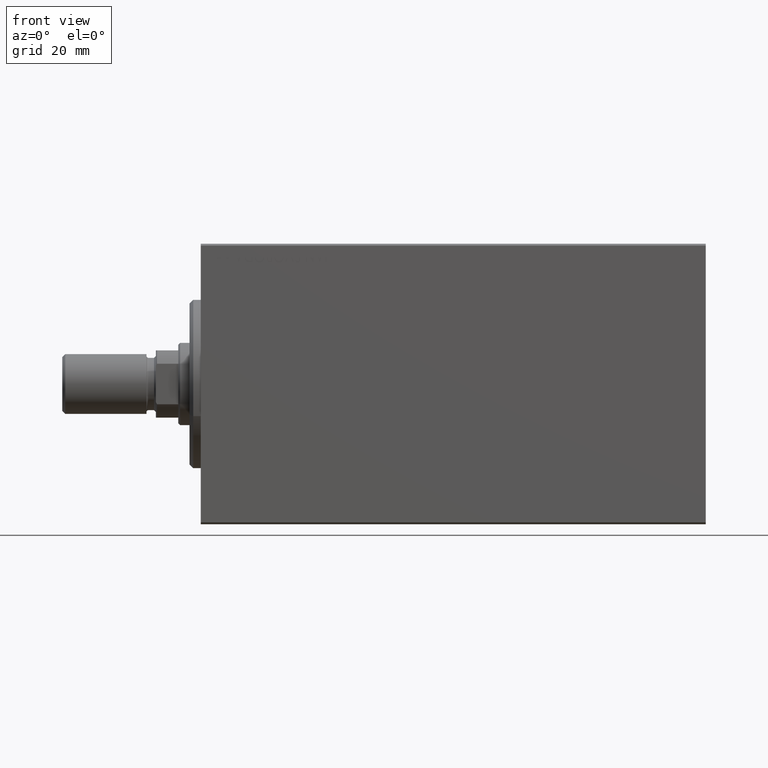
[diagram: clean part render]
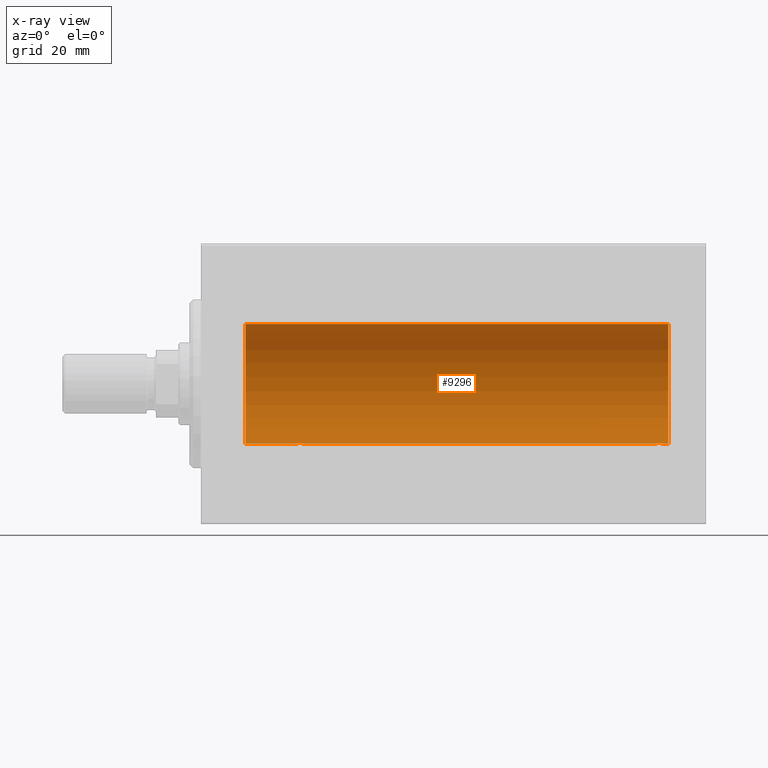
[diagram: x-ray — body ghosted, one internal face saturated and labeled with its STEP entity id]
A machine part, front view, then the same camera in x-ray: the body is ghosted and one INTERNAL B-rep face — a face not visible from any outside direction — is saturated and labeled: STEP entity #9296.
In plain terms, the highlighted cylindrical surface (partial cylindrical patch) has radius 16 mm, axis along (-1, -0, -0).
Its self-contained STEP definition (entity closure, byte-faithful):
#255 = ORIENTED_EDGE ( 'NONE', *, *, #5797, .T. ) ;
#825 = CARTESIAN_POINT ( 'NONE',  ( 25.27043888260214999, 1.598790766515153061, -15.92099550861380486 ) ) ;
#1274 = CARTESIAN_POINT ( 'NONE',  ( 24.76431901501739219, 1.002241074716281766, -15.96895041604536658 ) ) ;
#1449 = DIRECTION ( 'NONE',  ( -1.000000000000000000, -0.000000000000000000, -0.000000000000000000 ) ) ;
#1487 = CARTESIAN_POINT ( 'NONE',  ( 26.23808537237744787, 1.999903730784160505, -15.87451999516786216 ) ) ;
#1508 = CARTESIAN_POINT ( 'NONE',  ( 124.2348267067495726, 1.003662148334364845, -15.96885838080210362 ) ) ;
#1902 = AXIS2_PLACEMENT_3D ( 'NONE', #23455, #40724, #3452 ) ;
#1946 = CARTESIAN_POINT ( 'NONE',  ( 27.38617757057270197, 1.797743958659261398, -15.89876304682112718 ) ) ;
#2451 = CARTESIAN_POINT ( 'NONE',  ( 28.49999999999999645, 1.959434851239213200E-15, -16.00000000000000000 ) ) ;
#3118 = CARTESIAN_POINT ( 'NONE',  ( 120.6024112994440713, 0.6452446332037987675, -15.98744362947834929 ) ) ;
#3345 = CARTESIAN_POINT ( 'NONE',  ( 122.7625158300790105, 1.987008272775781403, -15.87616016863256618 ) ) ;
#3452 = DIRECTION ( 'NONE',  ( 0.000000000000000000, 0.000000000000000000, 1.000000000000000000 ) ) ;
#4827 = CYLINDRICAL_SURFACE ( 'NONE', #42584, 16.00000000000000000 ) ;
#5003 = EDGE_CURVE ( 'NONE', #34205, #13244, #9539, .T. ) ;
#5312 = CARTESIAN_POINT ( 'NONE',  ( 28.39783726498896144, 0.6445079780200569930, -15.98747331501412816 ) ) ;
#5797 = EDGE_CURVE ( 'NONE', #34205, #21686, #30909, .T. ) ;
#5852 = CARTESIAN_POINT ( 'NONE',  ( 125.0000000000000000, 0.000000000000000000, 16.00000000000000000 ) ) ;
#6143 = ORIENTED_EDGE ( 'NONE', *, *, #11698, .T. ) ;
#6726 = CARTESIAN_POINT ( 'NONE',  ( 123.0191309771011134, 1.935876924222067919, -15.88247600692093187 ) ) ;
#6764 = DIRECTION ( 'NONE',  ( -1.000000000000000000, 0.000000000000000000, 0.000000000000000000 ) ) ;
#7402 = ORIENTED_EDGE ( 'NONE', *, *, #7408, .T. ) ;
#7408 = EDGE_CURVE ( 'NONE', #23560, #13244, #27004, .T. ) ;
#7765 = CARTESIAN_POINT ( 'NONE',  ( 120.5000000000000142, -1.209844185672201777E-14, -16.00000000000000000 ) ) ;
#8428 = DIRECTION ( 'NONE',  ( 0.000000000000000000, 0.000000000000000000, 1.000000000000000000 ) ) ;
#8685 = CARTESIAN_POINT ( 'NONE',  ( 24.99389287531753823, 1.322357532253824131, -15.94553003295876970 ) ) ;
#8910 = CARTESIAN_POINT ( 'NONE',  ( 28.50000000000001066, 0.1305944228192323919, -16.00000000000000711 ) ) ;
#9296 = ADVANCED_FACE ( 'NONE', ( #18083 ), #4827, .F. ) ;
#9539 = LINE ( 'NONE', #26602, #15215 ) ;
#9874 = CARTESIAN_POINT ( 'NONE',  ( 120.5638867331794017, 0.5181437283161933749, -15.99211983514075008 ) ) ;
#10084 = CARTESIAN_POINT ( 'NONE',  ( 122.2380853723774408, 1.999903730784144962, -15.87451999516785861 ) ) ;
#10088 = ORIENTED_EDGE ( 'NONE', *, *, #13609, .F. ) ;
#11123 = CIRCLE ( 'NONE', #43376, 16.00000000000000000 ) ;
#11189 = CARTESIAN_POINT ( 'NONE',  ( 124.4356905292613078, 0.5198215460038736468, -15.99206840425679310 ) ) ;
#11386 = CARTESIAN_POINT ( 'NONE',  ( 24.51299475991586974, 0.2623312429553280034, -15.99836091803359750 ) ) ;
#11698 = EDGE_CURVE ( 'NONE', #20607, #25717, #11123, .T. ) ;
#12834 = CARTESIAN_POINT ( 'NONE',  ( 11.99999999999999645, 0.000000000000000000, 0.000000000000000000 ) ) ;
#12880 = CARTESIAN_POINT ( 'NONE',  ( 11.99999999999999645, 0.000000000000000000, 16.00000000000000000 ) ) ;
#12945 = CARTESIAN_POINT ( 'NONE',  ( 125.0000000000000000, 1.959434878635765131E-15, -16.00000000000000000 ) ) ;
#13043 = DIRECTION ( 'NONE',  ( 0.000000000000000000, 0.000000000000000000, 1.000000000000000000 ) ) ;
#13237 = CARTESIAN_POINT ( 'NONE',  ( 120.5000000000000142, -1.209844185672201777E-14, -16.00000000000000000 ) ) ;
#13244 = VERTEX_POINT ( 'NONE', #2451 ) ;
#13336 = CARTESIAN_POINT ( 'NONE',  ( 28.49999999999999645, 1.959434851239213200E-15, -16.00000000000000000 ) ) ;
#13454 = CARTESIAN_POINT ( 'NONE',  ( 121.2704388826021784, 1.598790766515134409, -15.92099550861380841 ) ) ;
#13521 = EDGE_CURVE ( 'NONE', #22781, #21686, #13607, .T. ) ;
#13607 = LINE ( 'NONE', #12945, #33987 ) ;
#13609 = EDGE_CURVE ( 'NONE', #23560, #25717, #40331, .T. ) ;
#13700 = CARTESIAN_POINT ( 'NONE',  ( 124.5000000000000142, 1.959434851248285101E-15, -16.00000000000000000 ) ) ;
#13757 = CARTESIAN_POINT ( 'NONE',  ( 26.76251583007899271, 1.987008272775795614, -15.87616016863256263 ) ) ;
#14976 = CARTESIAN_POINT ( 'NONE',  ( 24.90948495147900843, 1.219564485341768867, -15.95382484008323054 ) ) ;
#15215 = VECTOR ( 'NONE', #26824, 1000.000000000000000 ) ;
#15421 = CARTESIAN_POINT ( 'NONE',  ( 24.50000000000000000, -2.103177090749212087E-15, -16.00000000000000000 ) ) ;
#15649 = CARTESIAN_POINT ( 'NONE',  ( 27.50311247035039486, 1.735145127817748989, -15.90580292899658765 ) ) ;
#16445 = ORIENTED_EDGE ( 'NONE', *, *, #5003, .F. ) ;
#16577 = ORIENTED_EDGE ( 'NONE', *, *, #32716, .T. ) ;
#16833 = CARTESIAN_POINT ( 'NONE',  ( 120.9094849514790297, 1.219564485341755100, -15.95382484008322344 ) ) ;
#17708 = CARTESIAN_POINT ( 'NONE',  ( 123.7196765744227349, 1.590393755196005232, -15.92092783521423627 ) ) ;
#18083 = FACE_OUTER_BOUND ( 'NONE', #31032, .T. ) ;
#18137 = CARTESIAN_POINT ( 'NONE',  ( 124.0073716031243123, 1.321075116345880041, -15.94564302722883653 ) ) ;
#18569 = CARTESIAN_POINT ( 'NONE',  ( 25.97468243540595623, 1.947280337074166257, -15.88137861827786779 ) ) ;
#20198 = CARTESIAN_POINT ( 'NONE',  ( 120.7643190150173922, 1.002241074716269775, -15.96895041604535770 ) ) ;
#20292 = CARTESIAN_POINT ( 'NONE',  ( 28.09001528100123579, 1.220169175415121154, -15.95377581882983975 ) ) ;
#20423 = CARTESIAN_POINT ( 'NONE',  ( 123.1438696803301411, 1.898058445420877982, -15.88709929148890687 ) ) ;
#20607 = VERTEX_POINT ( 'NONE', #12880 ) ;
#20988 = ORIENTED_EDGE ( 'NONE', *, *, #13521, .F. ) ;
#21080 = CARTESIAN_POINT ( 'NONE',  ( 124.5000000000000142, 0.1305944228192319756, -16.00000000000000000 ) ) ;
#21519 = CARTESIAN_POINT ( 'NONE',  ( 124.5000000000000142, 1.959434851248285101E-15, -16.00000000000000000 ) ) ;
#21686 = VERTEX_POINT ( 'NONE', #13700 ) ;
#21942 = CARTESIAN_POINT ( 'NONE',  ( 25.49340818440418488, 1.747750603376301726, -15.90457341008072056 ) ) ;
#22781 = VERTEX_POINT ( 'NONE', #32553 ) ;
#23455 = CARTESIAN_POINT ( 'NONE',  ( 125.0000000000000000, 0.000000000000000000, 0.000000000000000000 ) ) ;
#23560 = VERTEX_POINT ( 'NONE', #24577 ) ;
#24577 = CARTESIAN_POINT ( 'NONE',  ( 24.50000000000000000, -2.103177090749212087E-15, -16.00000000000000000 ) ) ;
#24667 = CARTESIAN_POINT ( 'NONE',  ( 124.2974992860504244, 0.8866640484200082328, -15.97587307151818159 ) ) ;
#25564 = CIRCLE ( 'NONE', #1902, 16.00000000000000000 ) ;
#25717 = VERTEX_POINT ( 'NONE', #26057 ) ;
#25755 = CARTESIAN_POINT ( 'NONE',  ( 24.70286585251779954, 0.8874076679346754037, -15.97583181162461408 ) ) ;
#25932 = CARTESIAN_POINT ( 'NONE',  ( 125.0000000000000000, 0.000000000000000000, 0.000000000000000000 ) ) ;
#26057 = CARTESIAN_POINT ( 'NONE',  ( 11.99999999999999645, 1.959434878635765131E-15, -16.00000000000000000 ) ) ;
#26602 = CARTESIAN_POINT ( 'NONE',  ( 125.0000000000000000, 1.959434878635765131E-15, -16.00000000000000000 ) ) ;
#26824 = DIRECTION ( 'NONE',  ( -1.000000000000000000, -0.000000000000000000, -0.000000000000000000 ) ) ;
#26938 = CARTESIAN_POINT ( 'NONE',  ( 120.5000000000000000, 0.1322838750249116235, -16.00000000000000355 ) ) ;
#27004 = B_SPLINE_CURVE_WITH_KNOTS ( 'NONE', 3,
 ( #15421, #31606, #11386, #32049, #29136, #25755, #1274, #14976, #8685, #825, #21942, #18569, #1487, #28903, #13757, #29582, #27252, #1946, #15649, #27463, #37147, #39656, #20292, #44101, #30636, #5312, #43034, #33996, #8910, #13336 ),
 .UNSPECIFIED., .F., .F.,
 ( 4, 2, 2, 2, 2, 2, 2, 2, 2, 2, 2, 2, 2, 2, 4 ),
 ( 6.061354251518217081E-19, 0.0003911894522871152153, 0.0007823789045742298885, 0.001173568356861344345, 0.001564757809148459126, 0.002347136713722688690, 0.003129515618296918687, 0.003520705070584038889, 0.003911894522871159526, 0.004303083975158279728, 0.004694273427445399931, 0.005085462879732520133, 0.005476652332019640336, 0.005867841784306760539, 0.006259031236593880741 ),
 .UNSPECIFIED. ) ;
#27159 = CARTESIAN_POINT ( 'NONE',  ( 121.4934081844042169, 1.747750603376289957, -15.90457341008072412 ) ) ;
#27252 = CARTESIAN_POINT ( 'NONE',  ( 27.14386968033013758, 1.898058445420889750, -15.88709929148890510 ) ) ;
#27306 = DIRECTION ( 'NONE',  ( -1.000000000000000000, -0.000000000000000000, -0.000000000000000000 ) ) ;
#27463 = CARTESIAN_POINT ( 'NONE',  ( 27.71967657442277044, 1.590393755196006786, -15.92092783521423627 ) ) ;
#28485 = CARTESIAN_POINT ( 'NONE',  ( 123.5031124703503878, 1.735145127817744770, -15.90580292899658410 ) ) ;
#28903 = CARTESIAN_POINT ( 'NONE',  ( 26.62985308350499025, 2.000047931387146871, -15.87450182760079898 ) ) ;
#28923 = CARTESIAN_POINT ( 'NONE',  ( 124.0900152810012571, 1.220169175415116714, -15.95377581882983975 ) ) ;
#29136 = CARTESIAN_POINT ( 'NONE',  ( 24.60241129944407135, 0.6452446332038132004, -15.98744362947834929 ) ) ;
#29582 = CARTESIAN_POINT ( 'NONE',  ( 27.01913097710113121, 1.935876924222081907, -15.88247600692093187 ) ) ;
#30540 = CARTESIAN_POINT ( 'NONE',  ( 120.9938928753175560, 1.322357532253806589, -15.94553003295878391 ) ) ;
#30636 = CARTESIAN_POINT ( 'NONE',  ( 28.29749928605041021, 0.8866640484200126737, -15.97587307151818514 ) ) ;
#30909 = B_SPLINE_CURVE_WITH_KNOTS ( 'NONE', 3,
 ( #13237, #26938, #40621, #9874, #3118, #37265, #20198, #16833, #30540, #13454, #27159, #40835, #10084, #37476, #3345, #6726, #20423, #34123, #28485, #17708, #31845, #18137, #28923, #1508, #24667, #42600, #11189, #42370, #21080, #21519 ),
 .UNSPECIFIED., .F., .F.,
 ( 4, 2, 2, 2, 2, 2, 2, 2, 2, 2, 2, 2, 2, 2, 4 ),
 ( 2.296808397794382698E-18, 0.0003911894522871192811, 0.0007823789045742362853, 0.001173568356861353452, 0.001564757809148470402, 0.002347136713722703001, 0.003129515618296936467, 0.003520705070584053634, 0.003911894522871170801, 0.004303083975158287534, 0.004694273427445404268, 0.005085462879732521868, 0.005476652332019639469, 0.005867841784306756202, 0.006259031236593872935 ),
 .UNSPECIFIED. ) ;
#31032 = EDGE_LOOP ( 'NONE', ( #20988, #36008, #16577, #6143, #10088, #7402, #16445, #255 ) ) ;
#31128 = DIRECTION ( 'NONE',  ( -1.000000000000000000, -0.000000000000000000, -0.000000000000000000 ) ) ;
#31606 = CARTESIAN_POINT ( 'NONE',  ( 24.50000000000000000, 0.1322838750249236695, -16.00000000000000000 ) ) ;
#31845 = CARTESIAN_POINT ( 'NONE',  ( 123.8207582482893514, 1.507649250492127280, -15.92908549642226745 ) ) ;
#32049 = CARTESIAN_POINT ( 'NONE',  ( 24.56388673317936622, 0.5181437283162044771, -15.99211983514074653 ) ) ;
#32059 = LINE ( 'NONE', #32497, #43967 ) ;
#32497 = CARTESIAN_POINT ( 'NONE',  ( 125.0000000000000000, 0.000000000000000000, 16.00000000000000000 ) ) ;
#32553 = CARTESIAN_POINT ( 'NONE',  ( 125.0000000000000000, 1.959434878635765131E-15, -16.00000000000000000 ) ) ;
#32716 = EDGE_CURVE ( 'NONE', #36277, #20607, #32059, .T. ) ;
#33987 = VECTOR ( 'NONE', #27306, 1000.000000000000000 ) ;
#33996 = CARTESIAN_POINT ( 'NONE',  ( 28.48690924832126470, 0.2632563459770842496, -15.99834873924246814 ) ) ;
#34123 = CARTESIAN_POINT ( 'NONE',  ( 123.3861775705726984, 1.797743958659248964, -15.89876304682111652 ) ) ;
#34205 = VERTEX_POINT ( 'NONE', #7765 ) ;
#35361 = CARTESIAN_POINT ( 'NONE',  ( 125.0000000000000000, 1.959434878635765131E-15, -16.00000000000000000 ) ) ;
#36008 = ORIENTED_EDGE ( 'NONE', *, *, #43063, .F. ) ;
#36088 = DIRECTION ( 'NONE',  ( -1.000000000000000000, -0.000000000000000000, -0.000000000000000000 ) ) ;
#36277 = VERTEX_POINT ( 'NONE', #5852 ) ;
#37147 = CARTESIAN_POINT ( 'NONE',  ( 27.82075824828932653, 1.507649250492135717, -15.92908549642227101 ) ) ;
#37265 = CARTESIAN_POINT ( 'NONE',  ( 120.7028658525178315, 0.8874076679346604157, -15.97583181162460697 ) ) ;
#37476 = CARTESIAN_POINT ( 'NONE',  ( 122.6298530835049974, 2.000047931387132216, -15.87450182760079898 ) ) ;
#39656 = CARTESIAN_POINT ( 'NONE',  ( 28.00737160312429452, 1.321075116345886924, -15.94564302722882942 ) ) ;
#39701 = VECTOR ( 'NONE', #31128, 1000.000000000000000 ) ;
#40331 = LINE ( 'NONE', #35361, #39701 ) ;
#40621 = CARTESIAN_POINT ( 'NONE',  ( 120.5129947599158697, 0.2623312429553169567, -15.99836091803360105 ) ) ;
#40724 = DIRECTION ( 'NONE',  ( -1.000000000000000000, 0.000000000000000000, 0.000000000000000000 ) ) ;
#40835 = CARTESIAN_POINT ( 'NONE',  ( 121.9746824354059385, 1.947280337074152268, -15.88137861827786423 ) ) ;
#42370 = CARTESIAN_POINT ( 'NONE',  ( 124.4869092483212683, 0.2632563459770841940, -15.99834873924246104 ) ) ;
#42584 = AXIS2_PLACEMENT_3D ( 'NONE', #25932, #1449, #8428 ) ;
#42600 = CARTESIAN_POINT ( 'NONE',  ( 124.3978372649889508, 0.6445079780200543285, -15.98747331501412461 ) ) ;
#43034 = CARTESIAN_POINT ( 'NONE',  ( 28.43569052926130425, 0.5198215460038758673, -15.99206840425679665 ) ) ;
#43063 = EDGE_CURVE ( 'NONE', #36277, #22781, #25564, .T. ) ;
#43376 = AXIS2_PLACEMENT_3D ( 'NONE', #12834, #6764, #13043 ) ;
#43967 = VECTOR ( 'NONE', #36088, 1000.000000000000000 ) ;
#44101 = CARTESIAN_POINT ( 'NONE',  ( 28.23482670674955486, 1.003662148334367954, -15.96885838080210718 ) ) ;